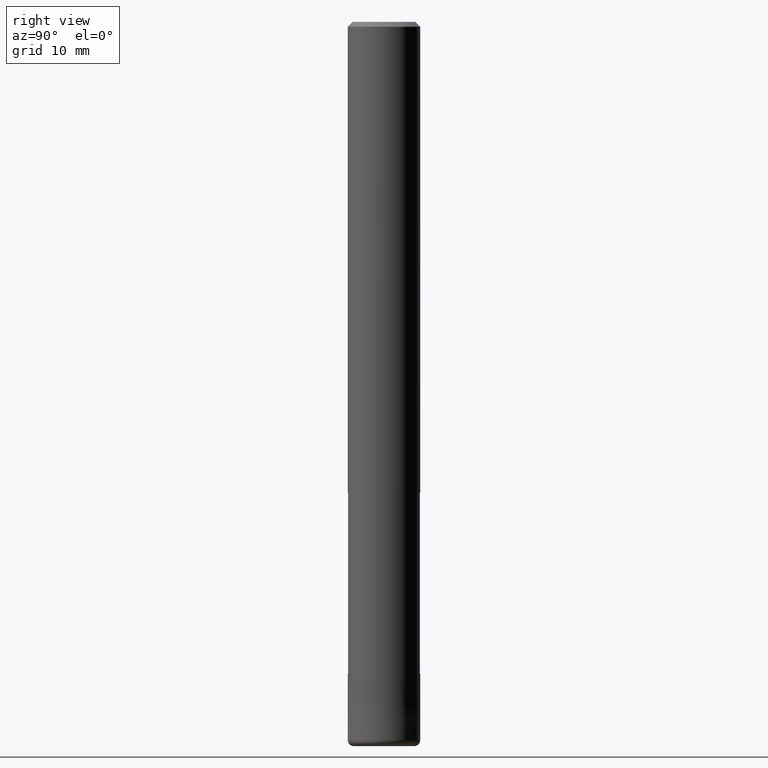
[diagram: clean part render]
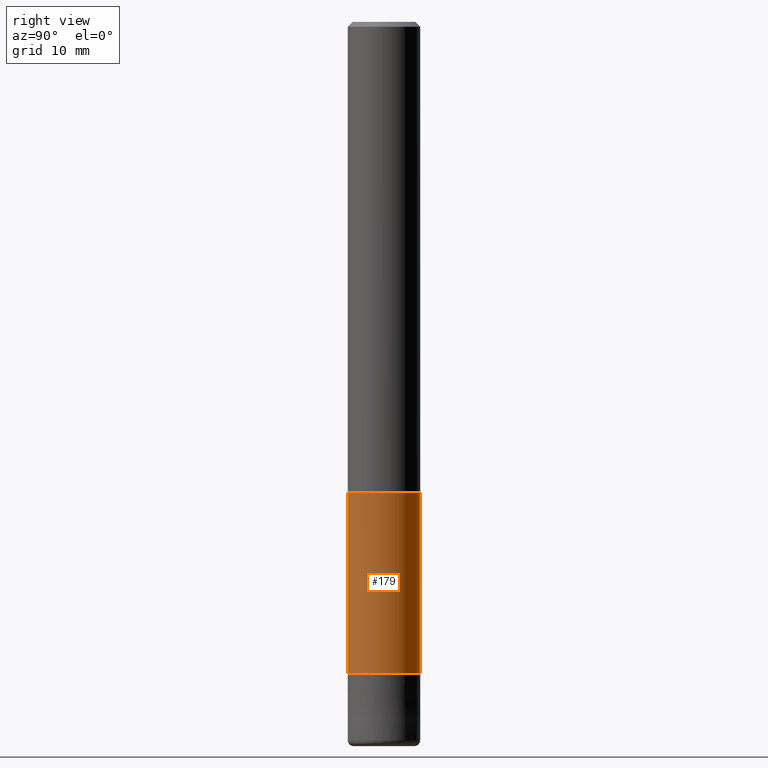
[diagram: same view with one face highlighted and labeled with its STEP entity id]
A machine part, right view. The second image highlights one B-rep face of the part: STEP entity #179.
In plain terms, the highlighted cylindrical surface (edge-blend (fillet) strip) has radius 2.975 mm, axis along (-0, -0, 1).
Its self-contained STEP definition (entity closure, byte-faithful):
#127=EDGE_CURVE('',#189,#275,#317,.T.);
#133=VERTEX_POINT('',#323);
#147=EDGE_CURVE('',#133,#275,#339,.T.);
#149=VERTEX_POINT('',#341);
#179=ADVANCED_FACE('',(#379),#380,.T.);
#185=EDGE_CURVE('',#149,#133,#386,.T.);
#189=VERTEX_POINT('',#390);
#219=EDGE_CURVE('',#189,#149,#424,.T.);
#275=VERTEX_POINT('',#486);
#317=CIRCLE('',#522,2.97495);
#323=CARTESIAN_POINT('',(3.64314267230388E-016,-2.97495,-54.0));
#339=LINE('',#549,#550);
#341=CARTESIAN_POINT('',(0.0,2.97495,-54.0));
#379=FACE_OUTER_BOUND('',#597,.T.);
#380=CYLINDRICAL_SURFACE('',#598,2.97495);
#386=CIRCLE('',#607,2.97495);
#390=CARTESIAN_POINT('',(0.0,2.97495,-39.0));
#424=LINE('',#652,#653);
#486=CARTESIAN_POINT('',(3.64314267230388E-016,-2.97495,-39.0));
#522=AXIS2_PLACEMENT_3D('',#766,#767,#768);
#549=CARTESIAN_POINT('',(3.64314267230388E-016,-2.97495,-46.5));
#550=VECTOR('',#785,1.0);
#597=EDGE_LOOP('',(#852,#853,#854,#855));
#598=AXIS2_PLACEMENT_3D('',#856,#857,#858);
#607=AXIS2_PLACEMENT_3D('',#865,#866,#867);
#652=CARTESIAN_POINT('',(-3.64314267230388E-016,2.97495,-46.5));
#653=VECTOR('',#914,1.0);
#766=CARTESIAN_POINT('',(0.0,0.0,-39.0));
#767=DIRECTION('',(0.0,0.0,-1.0));
#768=DIRECTION('',(0.0,1.0,0.0));
#785=DIRECTION('',(-0.0,-0.0,1.0));
#852=ORIENTED_EDGE('',*,*,#219,.F.);
#853=ORIENTED_EDGE('',*,*,#127,.T.);
#854=ORIENTED_EDGE('',*,*,#147,.F.);
#855=ORIENTED_EDGE('',*,*,#185,.F.);
#856=CARTESIAN_POINT('',(0.0,0.0,-46.5));
#857=DIRECTION('',(-0.0,-0.0,1.0));
#858=DIRECTION('',(0.0,1.0,0.0));
#865=CARTESIAN_POINT('',(0.0,0.0,-54.0));
#866=DIRECTION('',(0.0,0.0,-1.0));
#867=DIRECTION('',(0.0,1.0,0.0));
#914=DIRECTION('',(0.0,0.0,-1.0));